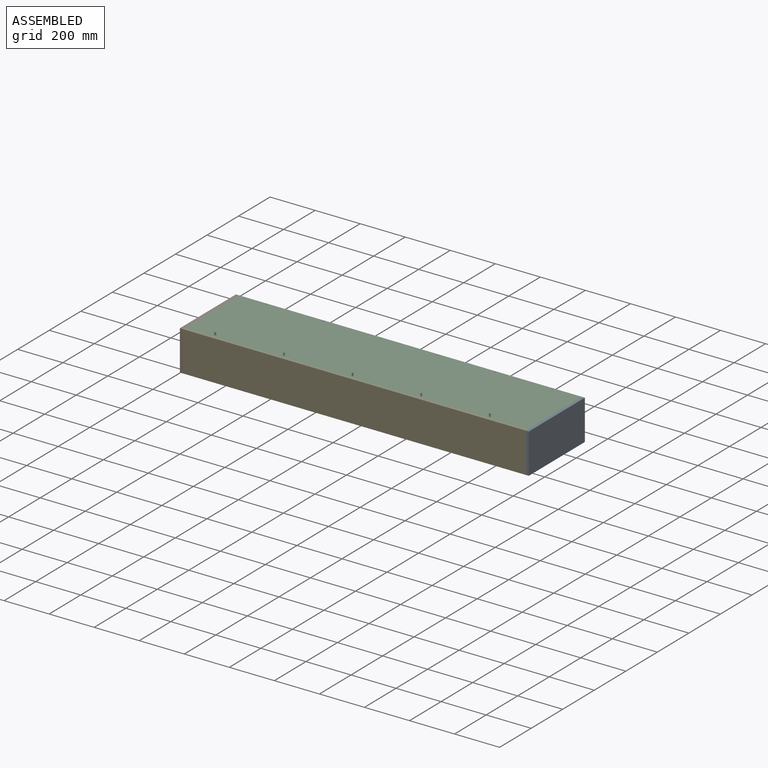
[diagram: assembled view]
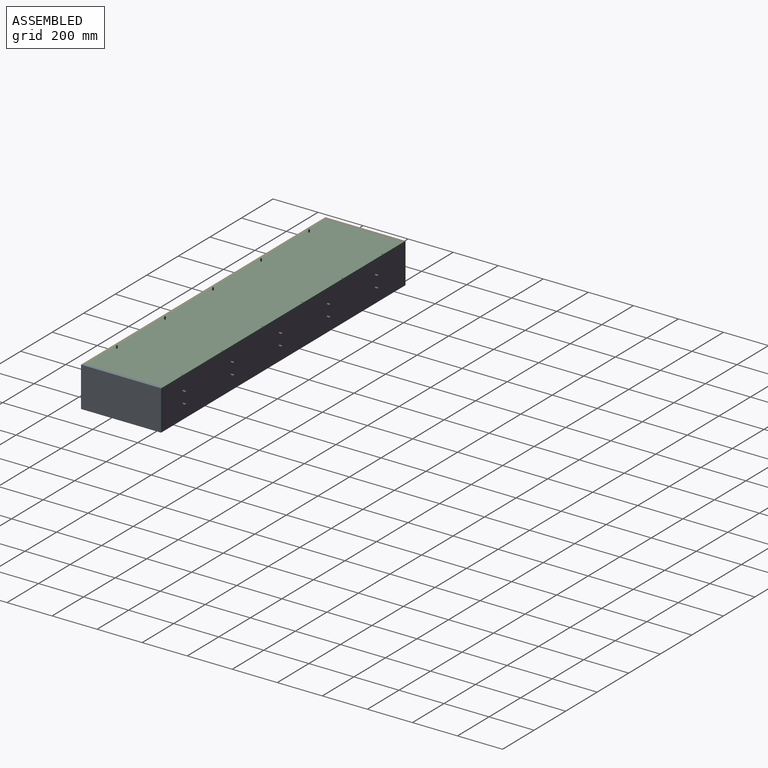
[diagram: assembled view, second angle]
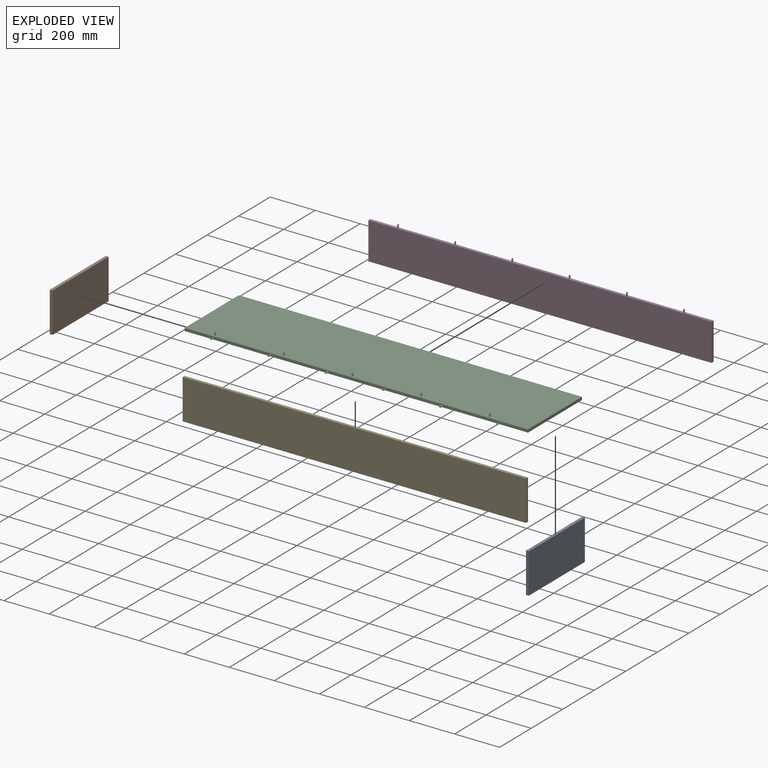
[diagram: exploded view]
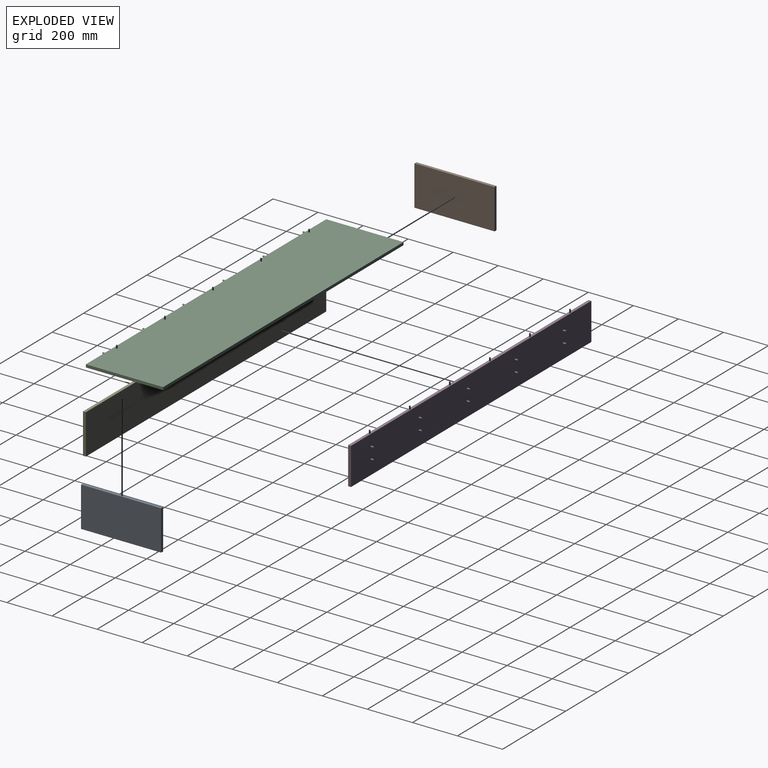
[diagram: exploded view, second angle]
ASSEMBLY  parts=5 mates=10
PART A: 6 faces, bbox 12.7x355.6x177.8 mm
  f0: plane 177.8x12.7mm, normal (0,-1,0), area 2258.1mm2, adj f1,f3,f4,f5
  f1: plane 355.6x12.7mm, normal (0,0,-1), area 4516.1mm2, adj f0,f2,f4,f5
  f2: plane 177.8x12.7mm, normal (0,1,0), area 2258.1mm2, adj f1,f3,f4,f5
  f3: plane 355.6x12.7mm, normal (0,0,1), area 4516.1mm2, adj f0,f2,f4,f5
  f4: plane 355.6x177.8mm, normal (1,0,0), area 63225.7mm2, adj f0,f1,f2,f3
  f5: plane 355.6x177.8mm, normal (-1,0,0), area 63225.7mm2, adj f0,f1,f2,f3
PART B: same geometry as A
PART C: 28 faces, bbox 1524x356.9x25.4 mm
  f0: plane 342.9x12.7mm, normal (-1,0,0), area 4354.8mm2, adj f1,f3,f4,f5
  f1: plane 1524x342.9mm, normal (0,0,-1), area 522579.6mm2, adj f0,f2,f4,f5
  f2: plane 342.9x12.7mm, normal (1,0,0), area 4354.8mm2, adj f1,f3,f4,f5
  f3: plane 1524x342.9mm, normal (0,0,1), area 522421.3mm2, adj f0,f2,f4,f5,f6,f8,f10,f12
  f4: plane 1524x12.7mm, normal (0,-1,0), area 19164.8mm2, adj f0,f1,f2,f3,f16,f18,f20,f22
  f5: plane 1524x12.7mm, normal (0,1,0), area 19354.8mm2, adj f0,f1,f2,f3
  f6: cylinder r=3.17mm len=12.7mm, axis (0,0,-1), area 253.4mm2, adj f3,f7
  f7: plane 6.35x6.35mm, normal (0,0,1), area 31.7mm2, adj f6
  f8: cylinder r=3.17mm len=12.7mm, axis (0,0,-1), area 253.4mm2, adj f3,f9
  f9: plane 6.35x6.35mm, normal (0,0,1), area 31.7mm2, adj f8
  f10: cylinder r=3.17mm len=12.7mm, axis (0,0,-1), area 253.4mm2, adj f3,f11
  f11: plane 6.35x6.35mm, normal (0,0,1), area 31.7mm2, adj f10
  f12: cylinder r=3.17mm len=12.7mm, axis (0,0,-1), area 253.4mm2, adj f3,f13
  f13: plane 6.35x6.35mm, normal (0,0,1), area 31.7mm2, adj f12
  f14: cylinder r=3.17mm len=12.7mm, axis (0,0,-1), area 253.4mm2, adj f3,f15
  f15: plane 6.35x6.35mm, normal (0,0,1), area 31.7mm2, adj f14
  f16: cylinder r=3.17mm len=13.97mm, axis (0,1,0), area 278.7mm2, adj f4,f17
  f17: plane 6.35x6.35mm, normal (0,-1,0), area 31.7mm2, adj f16
  f18: cylinder r=3.17mm len=13.97mm, axis (0,1,0), area 278.7mm2, adj f4,f19
  f19: plane 6.35x6.35mm, normal (0,-1,0), area 31.7mm2, adj f18
  f20: cylinder r=3.17mm len=13.97mm, axis (0,1,0), area 278.7mm2, adj f4,f21
  f21: plane 6.35x6.35mm, normal (0,-1,0), area 31.7mm2, adj f20
  f22: cylinder r=3.17mm len=13.97mm, axis (0,1,0), area 278.7mm2, adj f4,f23
  f23: plane 6.35x6.35mm, normal (0,-1,0), area 31.7mm2, adj f22
  f24: cylinder r=3.17mm len=13.97mm, axis (0,1,0), area 278.7mm2, adj f4,f25
  f25: plane 6.35x6.35mm, normal (0,-1,0), area 31.7mm2, adj f24
  f26: cylinder r=3.17mm len=13.97mm, axis (0,1,0), area 278.7mm2, adj f4,f27
  f27: plane 6.35x6.35mm, normal (0,-1,0), area 31.7mm2, adj f26
PART D: 38 faces, bbox 1524x25.4x179.1 mm
  f0: plane 1524x165.1mm, normal (0,1,0), area 251295.7mm2, adj f1,f3,f4,f5,f18,f20,f22,f24
  f1: plane 165.1x12.7mm, normal (-1,0,0), area 2096.8mm2, adj f0,f2,f4,f5
  f2: plane 1524x165.1mm, normal (0,-1,0), area 251612.4mm2, adj f1,f3,f4,f5
  f3: plane 165.1x12.7mm, normal (1,0,0), area 2096.8mm2, adj f0,f2,f4,f5
  f4: plane 1524x12.7mm, normal (0,0,1), area 19164.8mm2, adj f0,f1,f2,f3,f6,f8,f10,f12
  f5: plane 1524x12.7mm, normal (0,0,-1), area 19354.8mm2, adj f0,f1,f2,f3
  f6: cylinder r=3.17mm len=13.97mm, axis (0,0,-1), area 278.7mm2, adj f4,f7
  f7: plane 6.35x6.35mm, normal (0,0,1), area 31.7mm2, adj f6
  f8: cylinder r=3.17mm len=13.97mm, axis (0,0,-1), area 278.7mm2, adj f4,f9
  f9: plane 6.35x6.35mm, normal (0,0,1), area 31.7mm2, adj f8
  f10: cylinder r=3.17mm len=13.97mm, axis (0,0,-1), area 278.7mm2, adj f4,f11
  f11: plane 6.35x6.35mm, normal (0,0,1), area 31.7mm2, adj f10
  f12: cylinder r=3.17mm len=13.97mm, axis (0,0,-1), area 278.7mm2, adj f4,f13
  f13: plane 6.35x6.35mm, normal (0,0,1), area 31.7mm2, adj f12
  f14: cylinder r=3.17mm len=13.97mm, axis (0,0,-1), area 278.7mm2, adj f4,f15
  f15: plane 6.35x6.35mm, normal (0,0,1), area 31.7mm2, adj f14
  f16: cylinder r=3.17mm len=13.97mm, axis (0,0,-1), area 278.7mm2, adj f4,f17
  f17: plane 6.35x6.35mm, normal (0,0,1), area 31.7mm2, adj f16
  f18: cylinder r=3.17mm len=12.7mm, axis (0,-1,0), area 253.4mm2, adj f0,f19
  f19: plane 6.35x6.35mm, normal (0,1,0), area 31.7mm2, adj f18
  f20: cylinder r=3.17mm len=12.7mm, axis (0,-1,0), area 253.4mm2, adj f0,f21
  f21: plane 6.35x6.35mm, normal (0,1,0), area 31.7mm2, adj f20
  f22: cylinder r=3.17mm len=12.7mm, axis (0,-1,0), area 253.4mm2, adj f0,f23
  f23: plane 6.35x6.35mm, normal (0,1,0), area 31.7mm2, adj f22
  f24: cylinder r=3.17mm len=12.7mm, axis (0,-1,0), area 253.4mm2, adj f0,f25
  f25: plane 6.35x6.35mm, normal (0,1,0), area 31.7mm2, adj f24
  f26: cylinder r=3.17mm len=12.7mm, axis (0,-1,0), area 253.4mm2, adj f0,f27
  f27: plane 6.35x6.35mm, normal (0,1,0), area 31.7mm2, adj f26
  f28: cylinder r=3.17mm len=12.7mm, axis (0,-1,0), area 253.4mm2, adj f0,f29
  f29: plane 6.35x6.35mm, normal (0,1,0), area 31.7mm2, adj f28
  f30: cylinder r=3.17mm len=12.7mm, axis (0,-1,0), area 253.4mm2, adj f0,f31
  f31: plane 6.35x6.35mm, normal (0,1,0), area 31.7mm2, adj f30
  f32: cylinder r=3.17mm len=12.7mm, axis (0,-1,0), area 253.4mm2, adj f0,f33
  f33: plane 6.35x6.35mm, normal (0,1,0), area 31.7mm2, adj f32
  f34: cylinder r=3.17mm len=12.7mm, axis (0,-1,0), area 253.4mm2, adj f0,f35
  f35: plane 6.35x6.35mm, normal (0,1,0), area 31.7mm2, adj f34
  f36: cylinder r=3.17mm len=12.7mm, axis (0,-1,0), area 253.4mm2, adj f0,f37
  f37: plane 6.35x6.35mm, normal (0,1,0), area 31.7mm2, adj f36
PART E: 6 faces, bbox 1524x12.7x177.8 mm
  f0: plane 1524x177.8mm, normal (0,1,0), area 270967.2mm2, adj f1,f3,f4,f5
  f1: plane 177.8x12.7mm, normal (-1,0,0), area 2258.1mm2, adj f0,f2,f4,f5
  f2: plane 1524x177.8mm, normal (0,-1,0), area 270967.2mm2, adj f1,f3,f4,f5
  f3: plane 177.8x12.7mm, normal (1,0,0), area 2258.1mm2, adj f0,f2,f4,f5
  f4: plane 1524x12.7mm, normal (0,0,-1), area 19354.8mm2, adj f0,f1,f2,f3
  f5: plane 1524x12.7mm, normal (0,0,1), area 19354.8mm2, adj f0,f1,f2,f3
PLACE A t=(1156.09,86.63,83.93)mm
PLACE B t=(-380.61,86.63,83.93)mm
PLACE C t=(-367.91,442.23,249.03)mm
PLACE D t=(-367.91,442.23,83.93)mm
PLACE E t=(-367.91,99.33,261.73)mm
MATE planar D.f0 <-> C.f5  axis (0,1,0) through (394.06,442.23,166.48)mm
MATE planar A.f0 <-> E.f2  axis (0,-1,0) through (1162.44,86.63,172.83)mm
MATE planar C.f1 <-> D.f4  axis (0,0,-1) through (394.09,270.78,249.03)mm
MATE planar B.f4 <-> C.f0  axis (1,0,0) through (-367.91,264.43,172.83)mm
MATE planar B.f3 <-> C.f3  axis (0,0,1) through (-374.26,264.43,261.73)mm
MATE planar A.f3 <-> C.f3  axis (0,0,1) through (1162.44,264.43,261.73)mm
MATE planar B.f0 <-> E.f2  axis (0,-1,0) through (-374.26,86.63,172.83)mm
MATE planar C.f3 <-> E.f5  axis (0,0,1) through (394.1,270.83,261.73)mm
MATE planar E.f0 <-> C.f4  axis (0,1,0) through (394.09,99.33,172.83)mm
MATE planar A.f5 <-> E.f3  axis (-1,0,0) through (1156.09,264.43,172.83)mm
